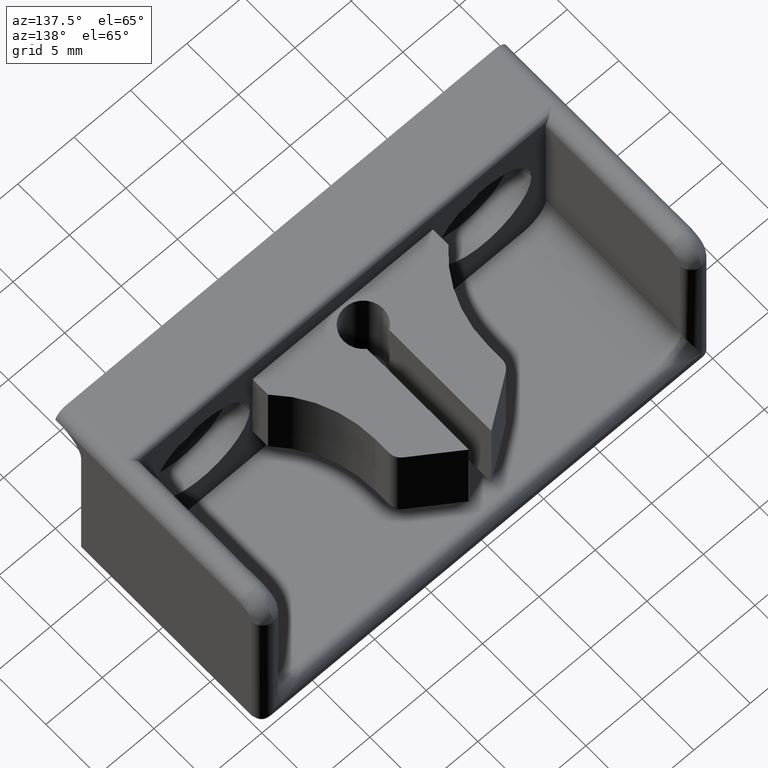
[diagram: clean part render]
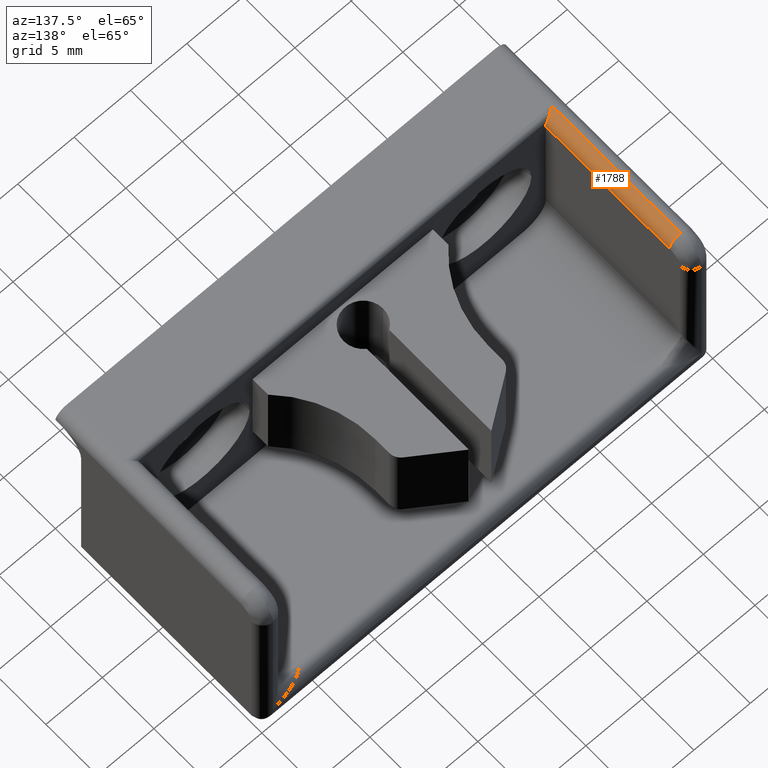
[diagram: same view with one face highlighted and labeled with its STEP entity id]
A machine part, auxiliary view. The second image highlights one B-rep face of the part: STEP entity #1788.
In plain terms, the highlighted cylindrical surface (edge-blend (fillet) strip) has radius 1 mm, axis along (0, 1, 0).
Its self-contained STEP definition (entity closure, byte-faithful):
#7=CARTESIAN_POINT('',(-19.000000000000007,-4.499999999999997,17.0));
#8=VERTEX_POINT('',#7);
#17=CARTESIAN_POINT('',(-19.000000000000007,7.999999999999989,17.0));
#18=VERTEX_POINT('',#17);
#19=CARTESIAN_POINT('',(-19.000000000000007,-4.499999999999996,17.0));
#20=DIRECTION('',(0.0,1.0,0.0));
#21=VECTOR('',#20,12.499999999999986);
#22=LINE('',#19,#21);
#23=EDGE_CURVE('',#8,#18,#22,.T.);
#477=CARTESIAN_POINT('',(-18.000000000000007,-3.999999999999997,15.999999999999995));
#478=VERTEX_POINT('',#477);
#479=CARTESIAN_POINT('',(-18.133974596215563,-3.999999999999997,16.500000000000000));
#480=VERTEX_POINT('',#479);
#481=CARTESIAN_POINT('',(-19.000000000000007,-3.999999999999997,16.0));
#482=DIRECTION('',(0.0,-1.0,0.0));
#483=DIRECTION('',(1.0,0.0,0.0));
#484=AXIS2_PLACEMENT_3D('',#481,#482,#483);
#485=CIRCLE('',#484,1.000000000000001);
#486=EDGE_CURVE('',#478,#480,#485,.T.);
#986=CARTESIAN_POINT('',(-18.000000000000007,7.999999999999989,16.0));
#987=VERTEX_POINT('',#986);
#995=CARTESIAN_POINT('',(-18.000000000000007,7.999999999999987,16.0));
#996=DIRECTION('',(0.0,-1.0,0.0));
#997=VECTOR('',#996,11.999999999999982);
#998=LINE('',#995,#997);
#999=EDGE_CURVE('',#987,#478,#998,.T.);
#1760=CARTESIAN_POINT('',(-19.000000000000007,-4.500000009999997,15.999999999999996));
#1761=DIRECTION('',(0.0,1.0,0.0));
#1762=DIRECTION('',(-0.707106781186548,0.0,-0.707106781186547));
#1763=AXIS2_PLACEMENT_3D('',#1760,#1761,#1762);
#1764=CYLINDRICAL_SURFACE('',#1763,1.000000000000001);
#1765=ORIENTED_EDGE('',*,*,#23,.F.);
#1766=CARTESIAN_POINT('',(-19.000000000000007,-4.499999999999997,17.0));
#1767=CARTESIAN_POINT('',(-18.839134864014380,-4.386251550382264,17.0));
#1768=CARTESIAN_POINT('',(-18.679766455758163,-4.272888130099751,16.962852649377744));
#1769=CARTESIAN_POINT('',(-18.452118841582209,-4.128932921868180,16.840972605422245));
#1770=CARTESIAN_POINT('',(-18.379530355365809,-4.086231737481474,16.789734597015237));
#1771=CARTESIAN_POINT('',(-18.244439205735318,-4.021442762586245,16.661657917511324));
#1772=CARTESIAN_POINT('',(-18.183821013064296,-3.999999999999997,16.586336526557268));
#1773=CARTESIAN_POINT('',(-18.133974596215563,-3.999999999999997,16.500000000000000));
#1774=B_SPLINE_CURVE_WITH_KNOTS('',3,(#1766,#1767,#1768,#1769,#1770,#1771,#1772,#1773),.UNSPECIFIED.,.F.,.U.,(4,2,2,4),(-0.000006324569375,0.000584729711738,0.000880256852295,0.001175783992851),.UNSPECIFIED.);
#1775=EDGE_CURVE('',#8,#480,#1774,.T.);
#1776=ORIENTED_EDGE('',*,*,#1775,.T.);
#1777=ORIENTED_EDGE('',*,*,#486,.F.);
#1778=ORIENTED_EDGE('',*,*,#999,.F.);
#1779=CARTESIAN_POINT('',(-19.000000000000007,7.999999999999989,16.0));
#1780=DIRECTION('',(0.0,-1.0,0.0));
#1781=DIRECTION('',(0.0,0.0,-1.0));
#1782=AXIS2_PLACEMENT_3D('',#1779,#1780,#1781);
#1783=CIRCLE('',#1782,1.000000000000001);
#1784=EDGE_CURVE('',#987,#18,#1783,.T.);
#1785=ORIENTED_EDGE('',*,*,#1784,.T.);
#1786=EDGE_LOOP('',(#1765,#1776,#1777,#1778,#1785));
#1787=FACE_OUTER_BOUND('',#1786,.T.);
#1788=ADVANCED_FACE('',(#1787),#1764,.T.);